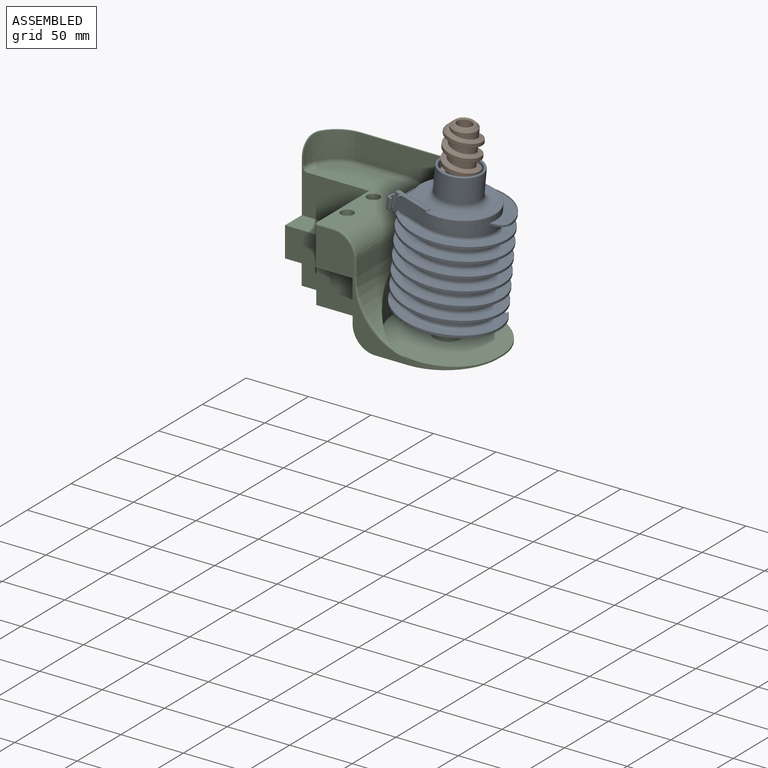
[diagram: assembled view]
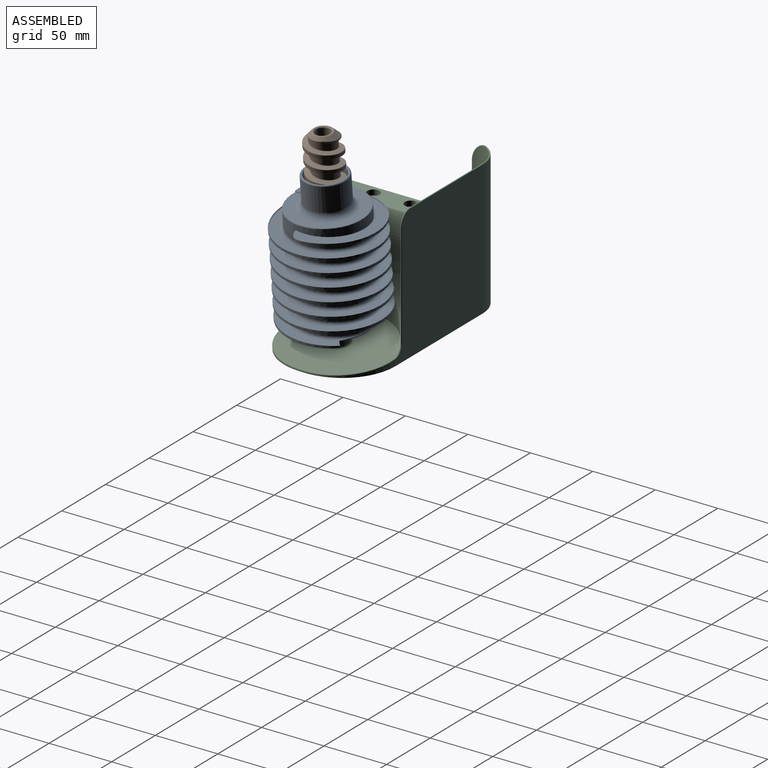
[diagram: assembled view, second angle]
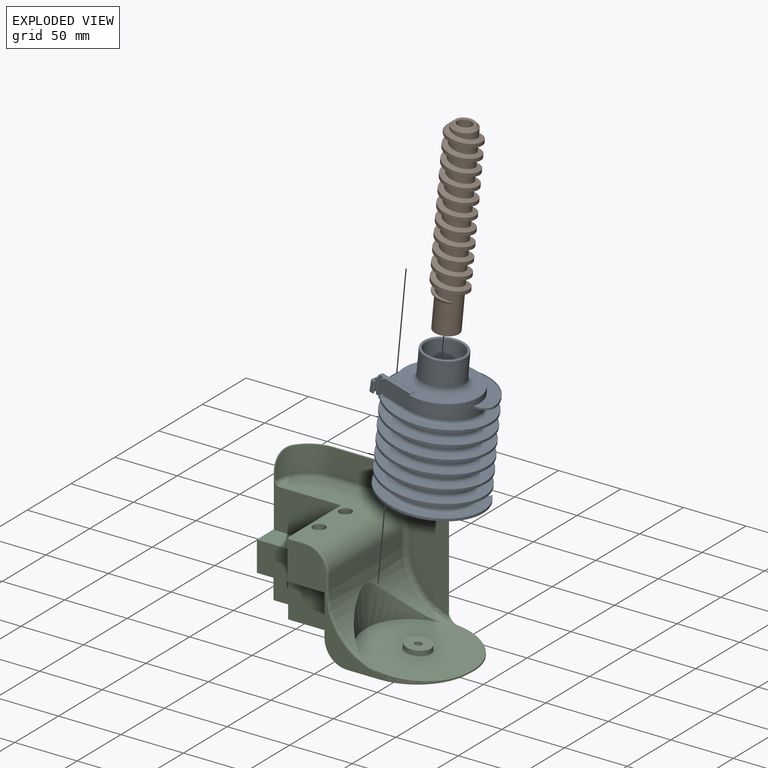
[diagram: exploded view]
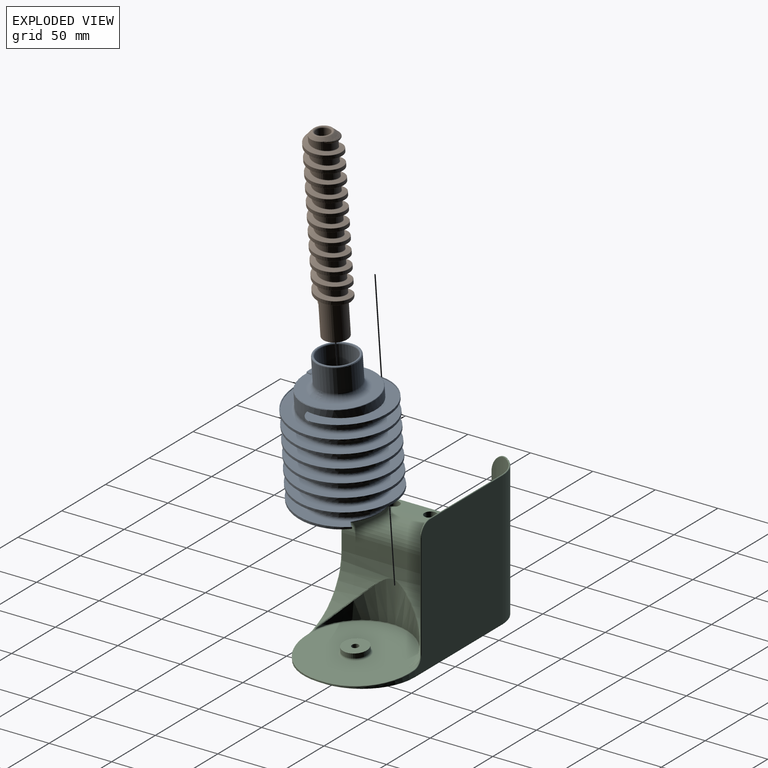
[diagram: exploded view, second angle]
ASSEMBLY  parts=3 mates=3
PART A: 163 faces, bbox 80.4x111.9x93.7 mm
  f0: cylinder r=15mm len=42mm, axis (0,1,0), area 3262.2mm2, adj f1,f32,f154,f155,f157,f159
  f1: cylinder r=15mm len=30mm, axis (0,1,0), area 478.9mm2, adj f0,f2,f154,f159
  f2: cylinder r=15mm len=30mm, axis (0,1,0), area 478.9mm2, adj f1,f3,f154,f159
  f3: cylinder r=15mm len=30mm, axis (0,1,0), area 478.9mm2, adj f2,f4,f154,f159
  f4: cylinder r=15mm len=30mm, axis (0,1,0), area 478.9mm2, adj f3,f5,f154,f159
  f5: cylinder r=15mm len=30mm, axis (0,1,0), area 478.9mm2, adj f4,f6,f154,f159
  f6: cylinder r=15mm len=30mm, axis (0,1,0), area 478.9mm2, adj f5,f7,f154,f159
  f7: cylinder r=15mm len=28.79mm, axis (0,1,0), area 110.8mm2, adj f6,f154,f158
  f8: bspline ~22.77x20.72mm, area 11.1mm2, adj f18,f22,f40,f146
  f9: bspline ~44.71x11.58mm, area 45.8mm2, adj f40,f140,f146,f147
  f10: plane 4x1mm, normal (-1,-0.06,0), area 3.6mm2, adj f13,f21,f78,f92,f95,f125
  f11: cylinder r=5mm len=8mm, axis (0,1,0), area 68.9mm2, adj f25,f34,f78,f102
  f12: bspline ~5.62x3.83mm, area 10.3mm2, adj f96,f100,f103,f104
  f13: plane 30.15x15.82mm, normal (0,0,-1), area 352.7mm2, adj f10,f16,f19,f25,f77,f80,f81,f92
  f14: cylinder r=39.5mm len=0.58mm, axis (0,-1,0), area 0.4mm2, adj f15,f16,f120
  f15: bspline ~27.93x18.29mm, area 0mm2, adj f14,f120
  f16: bspline ~28.38x12.2mm, area 0.7mm2, adj f13,f14,f19,f86,f120
  f17: bspline ~80.26x80.26mm, area 810.1mm2, adj f18,f19,f144,f150
  f18: cylinder r=39.5mm len=79mm, axis (0,-1,0), area 769.8mm2, adj f8,f17,f22,f40,f144,f150
  f19: cylinder r=40mm len=80mm, axis (0,-1,0), area 3560.1mm2, adj f13,f16,f17,f21,f35,f40,f86,f89
  f20: plane 59x59mm, normal (0,-1,0), area 1124.6mm2, adj f28,f29,f96,f104,f107
  f21: bspline ~80.26x68.51mm, area 71.4mm2, adj f10,f19,f33,f78,f95,f112
  f22: bspline ~79x79mm, area 10872.4mm2, adj f8,f18,f140,f142,f144,f146
  f23: cylinder r=28mm len=82.5mm, axis (0,1,0), area 3007.7mm2, adj f24,f40,f59,f61,f75,f76
  f24: cylinder r=2mm len=82.5mm, axis (0,1,0), area 240mm2, adj f23,f40,f59,f62,f75,f76
  f25: cylinder r=30mm len=83.5mm, axis (0,1,0), area 8202.7mm2, adj f11,f13,f34,f96,f102,f112,f140,f145
  f26: extruded ~19x5.37mm, area 102.4mm2, adj f27,f29,f31
  f27: cylinder r=17mm len=34mm, axis (0,1,0), area 1927mm2, adj f26,f28,f30
  f28: torus R=22mm, axis (0,-1,0), area 881.7mm2, adj f20,f27,f29
  f29: bspline ~9.25x5.4mm, area 46.9mm2, adj f20,f26,f28
  f30: torus R=16mm, axis (0,-1,0), area 155.9mm2, adj f27,f31,f32
  f31: bspline ~7.25x1.35mm, area 8.3mm2, adj f26,f30,f32
  f32: torus R=16mm, axis (0,-1,0), area 151.6mm2, adj f0,f30,f31
  f33: cylinder r=39.5mm len=77.83mm, axis (0,-1,0), area 71.4mm2, adj f21,f34,f78,f112
  f34: bspline ~79x79mm, area 1262.3mm2, adj f11,f25,f33,f78,f112
  f35: bspline ~80x80mm, area 12769mm2, adj f19,f112,f145,f149
  f36: bspline ~81.64x30mm, area 1998.1mm2, adj f39,f157,f159,f161,f162
  f37: cylinder r=11mm len=79.11mm, axis (0,-1,0), area 1096.3mm2, adj f39,f40,f151,f152,f161,f162
  f38: bspline ~78.07x30mm, area 1919.7mm2, adj f151,f152,f153,f154
  f39: plane 4.43x3.51mm, normal (0,0,-1), area 12.1mm2, adj f36,f37,f152,f157,f161
  f40: plane 63.32x59.92mm, normal (0,1,0), area 789.9mm2, adj f8,f9,f18,f19,f23,f24,f37,f42
  f41: plane 26.83x26.83mm, normal (0,1,0), area 363.4mm2, adj f42,f43,f44,f45,f46,f47,f48,f49
  f42: cylinder r=28mm len=82.5mm, axis (0,1,0), area 3094.3mm2, adj f40,f41,f43,f49
  f43: cylinder r=2mm len=82.5mm, axis (0,1,0), area 278.3mm2, adj f40,f41,f42,f44
  f44: plane 82.5x7.06mm, normal (0,0,1), area 582.8mm2, adj f40,f41,f43,f45
  f45: cylinder r=2mm len=82.5mm, axis (0,1,0), area 233mm2, adj f40,f41,f44,f46
  f46: cylinder r=17mm len=82.5mm, axis (0,1,0), area 1758.3mm2, adj f40,f41,f45,f47
  f47: cylinder r=2mm len=82.5mm, axis (0,1,0), area 233mm2, adj f40,f41,f46,f48
  f48: plane 82.5x7.06mm, normal (-1,0,0), area 582.8mm2, adj f40,f41,f47,f49
  f49: cylinder r=2mm len=82.5mm, axis (0,1,0), area 278.3mm2, adj f40,f41,f42,f48
  f50: plane 26.83x26.83mm, normal (0,1,0), area 363.4mm2, adj f51,f52,f53,f54,f55,f56,f57,f58
  f51: plane 82.5x7.06mm, normal (0,0,1), area 582.8mm2, adj f40,f50,f52,f58
  f52: cylinder r=2mm len=82.5mm, axis (0,1,0), area 278.3mm2, adj f40,f50,f51,f53
  f53: cylinder r=28mm len=82.5mm, axis (0,1,0), area 3094.3mm2, adj f40,f50,f52,f54
  f54: cylinder r=2mm len=82.5mm, axis (0,1,0), area 278.3mm2, adj f40,f50,f53,f55
  f55: plane 82.5x7.06mm, normal (1,0,0), area 582.8mm2, adj f40,f50,f54,f56
  f56: cylinder r=2mm len=82.5mm, axis (0,1,0), area 233mm2, adj f40,f50,f55,f57
  f57: cylinder r=17mm len=82.5mm, axis (0,1,0), area 1758.3mm2, adj f40,f50,f56,f58
  f58: cylinder r=2mm len=82.5mm, axis (0,1,0), area 233mm2, adj f40,f50,f51,f57
  f59: plane 26.83x25mm, normal (0,1,0), area 352.5mm2, adj f23,f24,f60,f61,f62,f63,f64,f65
  f60: plane 82.5x7.06mm, normal (0,0,-1), area 582.8mm2, adj f40,f59,f61,f65
  f61: cylinder r=2mm len=82.5mm, axis (0,1,0), area 278.3mm2, adj f23,f40,f59,f60
  f62: plane 82.5x7.06mm, normal (-1,0,0), area 582.8mm2, adj f24,f40,f59,f63
  f63: cylinder r=2mm len=82.5mm, axis (0,1,0), area 233mm2, adj f40,f59,f62,f64
  f64: cylinder r=17mm len=82.5mm, axis (0,1,0), area 1758.3mm2, adj f40,f59,f63,f65
  f65: cylinder r=2mm len=82.5mm, axis (0,1,0), area 233mm2, adj f40,f59,f60,f64
  f66: plane 26.83x26.83mm, normal (0,1,0), area 363.4mm2, adj f67,f68,f69,f70,f71,f72,f73,f74
  f67: plane 82.5x7.06mm, normal (1,0,0), area 582.8mm2, adj f40,f66,f68,f74
  f68: cylinder r=2mm len=82.5mm, axis (0,1,0), area 278.3mm2, adj f40,f66,f67,f69
  f69: cylinder r=28mm len=82.5mm, axis (0,1,0), area 3094.3mm2, adj f40,f66,f68,f70
  f70: cylinder r=2mm len=82.5mm, axis (0,1,0), area 278.3mm2, adj f40,f66,f69,f71
  f71: plane 82.5x7.06mm, normal (0,0,-1), area 582.8mm2, adj f40,f66,f70,f72
  f72: cylinder r=2mm len=82.5mm, axis (0,1,0), area 233mm2, adj f40,f66,f71,f73
  f73: cylinder r=17mm len=82.5mm, axis (0,1,0), area 1758.3mm2, adj f40,f66,f72,f74
  f74: cylinder r=2mm len=82.5mm, axis (0,1,0), area 233mm2, adj f40,f66,f67,f73
  f75: plane 12.03x9.38mm, normal (0,0,1), area 110.3mm2, adj f23,f24,f59,f76
  f76: plane 9.43x1.87mm, normal (-0.06,1,0), area 10.9mm2, adj f23,f24,f75
  f77: plane 2.32x2.28mm, normal (-0.06,1,0), area 2.6mm2, adj f13,f92,f93
  f78: plane 14.06x3.71mm, normal (0,0,1), area 32.6mm2, adj f10,f11,f21,f33,f34,f80,f100,f101
  f79: plane 3.43x0.04mm, normal (1,0,0), area 0.1mm2, adj f98,f99,f106,f107,f109
  f80: plane 4x1mm, normal (-1,-0.06,0), area 4mm2, adj f13,f78,f101,f130
  f81: plane 28.14x6.2mm, normal (0.06,-1,0), area 102.3mm2, adj f13,f82,f84,f85,f98,f99,f100,f101
  f82: plane 1.7x0.65mm, normal (-1,-0.06,0), area 1.1mm2, adj f81,f83,f85,f123
  f83: cylinder r=0.6mm len=1.7mm, axis (0,0,1), area 3.2mm2, adj f82,f84,f85,f122
  f84: plane 1.7x0.65mm, normal (1,0.06,0), area 1.1mm2, adj f81,f83,f85,f121
  f85: plane 1.29x1.24mm, normal (0,0,-1), area 1.3mm2, adj f81,f82,f83,f84
  f86: plane 1.7x1.15mm, normal (-1,-0.06,0), area 1.8mm2, adj f16,f19,f87,f88,f89,f91,f120
  f87: cylinder r=0.6mm len=1.7mm, axis (0,0,1), area 2.8mm2, adj f86,f88,f119,f141,f144
  f88: plane 1.97x1.96mm, normal (0,0,-1), area 2.7mm2, adj f86,f87,f89,f90,f91,f144
  f89: extruded ~1.95x1.43mm, area 1.4mm2, adj f19,f86,f88,f90,f91,f144
  f90: plane 1.81x1.35mm, normal (-0.06,1,0), area 1.2mm2, adj f88,f89,f91
  f91: cylinder r=0.1mm len=1.43mm, axis (0,0,1), area 0.2mm2, adj f86,f88,f89,f90
  f92: cylinder r=0.5mm len=3.32mm, axis (0,0,-1), area 2.2mm2, adj f10,f13,f77,f94
  f93: bspline ~3.04x3mm, area 2.7mm2, adj f13,f19,f77,f94
  f94: bspline ~1.7x1.24mm, area 0.8mm2, adj f19,f92,f93,f95
  f95: bspline ~0.62x0.36mm, area 0.2mm2, adj f10,f19,f21,f94
  f96: torus R=29.5mm, axis (0,-1,0), area 126.8mm2, adj f12,f20,f25,f97,f102,f103,f105,f106
  f97: cylinder r=0.5mm len=0.5mm, axis (-1,0,0), area 0.1mm2, adj f13,f96,f98,f105
  f98: cylinder r=0.5mm len=1.44mm, axis (0,1,0), area 0.5mm2, adj f13,f79,f81,f97,f99,f105
  f99: cylinder r=0.5mm len=3.86mm, axis (0,0,-1), area 2.6mm2, adj f79,f81,f98,f110,f111
  f100: cylinder r=0.5mm len=28.78mm, axis (-1,-0.06,0), area 12.8mm2, adj f12,f78,f81,f101,f103,f104,f111
  f101: cylinder r=0.5mm len=4mm, axis (0,0,-1), area 3mm2, adj f13,f78,f80,f81,f100
  f102: bspline ~8x7.56mm, area 61.3mm2, adj f11,f25,f78,f96,f103
  f103: bspline ~7.79x7.63mm, area 20.2mm2, adj f12,f96,f100,f102
  f104: bspline ~30.37x4.4mm, area 73.6mm2, adj f12,f20,f100,f108,f109,f110
  f105: bspline ~0.88x0.85mm, area 0.3mm2, adj f96,f97,f98,f106
  f106: bspline ~0.41x0.4mm, area 0mm2, adj f79,f96,f105,f107
  f107: cylinder r=0.4mm len=6mm, axis (0,0,-1), area 3mm2, adj f20,f79,f106,f108
  f108: bspline ~2.68x0.71mm, area 0.4mm2, adj f104,f107,f109
  f109: bspline ~0.4x0.38mm, area 0mm2, adj f79,f104,f108,f110
  f110: bspline ~0.68x0.63mm, area 0.1mm2, adj f99,f104,f109,f111
  f111: bspline ~0.29x0.29mm, area 0mm2, adj f99,f100,f110
  f112: cylinder r=10mm len=13.15mm, axis (0,1,0), area 28.8mm2, adj f19,f21,f25,f33,f34,f35,f145
  f113: plane 9.98x3mm, normal (1,0.06,0), area 30mm2, adj f114,f115,f118,f138
  f114: plane 3x1mm, normal (0.06,-1,0), area 3mm2, adj f113,f129,f132,f139
  f115: plane 3x1mm, normal (-0.06,1,0), area 3mm2, adj f113,f126,f135,f137
  f116: plane 8.11x2.47mm, normal (0,0,-1), area 16mm2, adj f124,f127,f132,f135
  f117: plane 7.99x7mm, normal (-1,-0.06,0), area 56mm2, adj f126,f127,f128,f129
  f118: plane 10.04x2.54mm, normal (0,0,1), area 19.6mm2, adj f113,f124,f131,f132,f134,f135
  f119: torus R=1.6mm, axis (0,0,1), area 3.8mm2, adj f13,f87,f120,f141
  f120: cylinder r=1mm len=1.16mm, axis (0.06,-1,0), area 1.3mm2, adj f13,f14,f15,f16,f86,f119
  f121: cylinder r=1mm len=1.04mm, axis (-0.06,1,0), area 1mm2, adj f13,f81,f84,f122
  f122: torus R=1.6mm, axis (0,0,1), area 4.8mm2, adj f13,f83,f121,f123
  f123: cylinder r=1mm len=1.04mm, axis (0.06,-1,0), area 1mm2, adj f13,f81,f82,f122
  f124: cylinder r=1mm len=8.05mm, axis (-0.06,1,0), area 12.6mm2, adj f116,f118,f131,f134
  f125: cylinder r=1mm len=5mm, axis (0,0,1), area 7.1mm2, adj f10,f78,f126,f137
  f126: cylinder r=1mm len=8mm, axis (0,0,1), area 11.8mm2, adj f115,f117,f125,f128,f136
  f127: cylinder r=1mm len=8.05mm, axis (-0.06,1,0), area 12.6mm2, adj f116,f117,f133,f136
  f128: cylinder r=1mm len=10.04mm, axis (0.06,-1,0), area 14.1mm2, adj f78,f117,f126,f129
  f129: cylinder r=1mm len=8mm, axis (0,0,-1), area 11.8mm2, adj f114,f117,f128,f130,f133
  f130: cylinder r=1mm len=5mm, axis (0,0,-1), area 7.1mm2, adj f78,f80,f129,f139
  f131: sphere r=1mm, area 1.6mm2, adj f118,f124,f132
  f132: cylinder r=1mm len=2.06mm, axis (1,0.06,0), area 3.1mm2, adj f114,f116,f118,f131,f133
  f133: sphere r=1mm, area 1.6mm2, adj f127,f129,f132
  f134: sphere r=1mm, area 1.6mm2, adj f118,f124,f135
  f135: cylinder r=1mm len=2.06mm, axis (-1,-0.06,0), area 3.1mm2, adj f115,f116,f118,f134,f136
  f136: sphere r=1mm, area 2.2mm2, adj f126,f127,f135
  f137: cylinder r=1mm len=2.06mm, axis (-1,-0.06,0), area 1.6mm2, adj f13,f115,f125,f138
  f138: cylinder r=1mm len=12.04mm, axis (-0.06,1,0), area 17.3mm2, adj f13,f113,f137,f139
  f139: cylinder r=1mm len=2.06mm, axis (-1,-0.06,0), area 1.6mm2, adj f13,f114,f130,f138
  f140: bspline ~75.12x64.03mm, area 3900.3mm2, adj f9,f22,f25,f142,f146
  f141: bspline ~1.62x1.25mm, area 0.6mm2, adj f87,f119,f142,f143
  f142: bspline ~31x3.52mm, area 69.8mm2, adj f13,f22,f140,f141,f143
  f143: bspline ~1.92x1.91mm, area 1.5mm2, adj f141,f142,f144
  f144: bspline ~6.99x1.86mm, area 2.7mm2, adj f17,f18,f19,f22,f87,f88,f89,f143
  f145: bspline ~80.32x64.03mm, area 4239.1mm2, adj f25,f35,f112,f148
  f146: bspline ~1x0.74mm, area 0.7mm2, adj f8,f9,f22,f40,f140
  f147: torus R=29.5mm, axis (0,1,0), area 73.5mm2, adj f9,f25,f40,f148
  f148: bspline ~42.09x13.86mm, area 21.6mm2, adj f40,f145,f147,f149
  f149: bspline ~9.91x6.33mm, area 0.2mm2, adj f19,f35,f40,f148
  f150: bspline ~26.8x23.52mm, area 1.2mm2, adj f17,f18,f19,f40
  f151: bspline ~77.46x22.75mm, area 323.2mm2, adj f37,f38,f40,f152,f153
  f152: bspline ~4.96x1.75mm, area 2.6mm2, adj f37,f38,f39,f151,f155
  f153: bspline ~9.59x2mm, area 1.1mm2, adj f38,f40,f151,f156
  f154: bspline ~76.22x30.01mm, area 420.3mm2, adj f0,f1,f2,f3,f4,f5,f6,f7
  f155: bspline ~1.27x1.07mm, area 0.8mm2, adj f0,f152,f154,f157
  f156: bspline ~8.5x4.46mm, area 4.3mm2, adj f40,f153,f154,f158
  f157: cylinder r=0.5mm len=4.99mm, axis (0,1,0), area 3.7mm2, adj f0,f36,f39,f155,f159
  f158: torus R=15.5mm, axis (0,1,0), area 34.7mm2, adj f7,f40,f156,f160
  f159: bspline ~81.1x30.01mm, area 447.9mm2, adj f0,f1,f2,f3,f4,f5,f6,f36
  f160: bspline ~9.28x4.03mm, area 8.7mm2, adj f40,f158,f159,f162
  f161: bspline ~79.39x22.75mm, area 332mm2, adj f36,f37,f39,f162
  f162: bspline ~8.21x7.59mm, area 10.5mm2, adj f36,f37,f40,f160,f161
PART B: 40 faces, bbox 28.4x154x30.1 mm
  f0: cylinder r=10mm len=20mm, axis (0,1,0), area 336.8mm2, adj f1,f2,f18,f28,f29,f32
  f1: cylinder r=10mm len=12.26mm, axis (0,1,0), area 31.8mm2, adj f0,f18,f32
  f2: cylinder r=10mm len=20mm, axis (0,1,0), area 343.4mm2, adj f0,f3,f29,f32
  f3: cylinder r=10mm len=20mm, axis (0,1,0), area 343.4mm2, adj f2,f4,f29,f32
  f4: cylinder r=10mm len=20mm, axis (0,1,0), area 343.4mm2, adj f3,f5,f29,f32
  f5: cylinder r=10mm len=20mm, axis (0,1,0), area 343.4mm2, adj f4,f6,f29,f32
  f6: cylinder r=10mm len=20mm, axis (0,1,0), area 343.4mm2, adj f5,f7,f29,f32
  f7: cylinder r=10mm len=20mm, axis (0,1,0), area 343.4mm2, adj f6,f8,f29,f32
  f8: cylinder r=10mm len=20mm, axis (0,1,0), area 343.4mm2, adj f7,f9,f29,f32
  f9: cylinder r=10mm len=20mm, axis (0,1,0), area 343.4mm2, adj f8,f10,f29,f32
  f10: cylinder r=10mm len=20mm, axis (0,1,0), area 343.4mm2, adj f9,f11,f29,f32
  f11: cylinder r=10mm len=20mm, axis (0,1,0), area 343.4mm2, adj f10,f12,f29,f32
  f12: cylinder r=10mm len=32.59mm, axis (0,1,0), area 1711.8mm2, adj f11,f16,f29,f30,f31
  f13: cylinder r=14mm len=118.31mm, axis (0,-1,0), area 2573.6mm2, adj f22,f23,f24,f25,f26,f27
  f14: bspline ~127.57x28mm, area 3122.9mm2, adj f17,f20,f26,f29
  f15: bspline ~127.57x28mm, area 3127.6mm2, adj f18,f21,f23,f32
  f16: plane 20x20mm, normal (0,-1,0), area 125.5mm2, adj f12,f39
  f17: cone r=10mm half-angle=42.1deg, axis (0,1,0), area 98.8mm2, adj f14,f21,f24,f26,f29,f30
  f18: cone r=15.63mm half-angle=45deg, axis (0,-1,0), area 267.4mm2, adj f0,f1,f15,f20,f23,f25,f28,f32
  f19: plane 13.91x13.91mm, normal (0,1,0), area 0.3mm2, adj f36,f37
  f20: bspline ~23.88x23.8mm, area 72.3mm2, adj f14,f18,f27,f28
  f21: bspline ~25.73x23.47mm, area 76.1mm2, adj f15,f17,f22,f31
  f22: bspline ~5.54x4.55mm, area 1.6mm2, adj f13,f21,f23,f24
  f23: bspline ~117.18x28.01mm, area 307.3mm2, adj f13,f15,f18,f22,f25
  f24: torus R=13.75mm, axis (0,-1,0), area 2.2mm2, adj f13,f17,f22,f26
  f25: torus R=13.75mm, axis (0,1,0), area 2.3mm2, adj f13,f18,f23,f27
  f26: bspline ~117.26x28.01mm, area 307.3mm2, adj f13,f14,f17,f24,f27
  f27: bspline ~5.24x4.13mm, area 1.5mm2, adj f13,f20,f25,f26
  f28: bspline ~6.85x4.06mm, area 1.7mm2, adj f0,f18,f20,f29
  f29: bspline ~125.19x20.38mm, area 238.3mm2, adj f0,f2,f3,f4,f5,f6,f7,f8
  f30: torus R=10.25mm, axis (0,-1,0), area 3.8mm2, adj f12,f17,f29,f31
  f31: bspline ~7.48x4.37mm, area 1.9mm2, adj f12,f21,f30,f32
  f32: bspline ~124.74x20.38mm, area 238.2mm2, adj f0,f1,f2,f3,f4,f5,f6,f7
  f33: cylinder r=5.75mm len=131.3mm, axis (0,1,0), area 4743.6mm2, adj f34,f36
  f34: torus R=5.25mm, axis (0,1,0), area 19.5mm2, adj f33,f38
  f35: cylinder r=2.75mm len=15.6mm, axis (0,1,0), area 269.6mm2, adj f38,f39
  f36: torus R=6.95mm, axis (0,-1,0), area 73.3mm2, adj f19,f33
  f37: torus R=6.96mm, axis (0,-1,0), area 43.8mm2, adj f18,f19
  f38: cone r=2.75mm half-angle=31.5deg, axis (0,1,0), area 135mm2, adj f34,f35
  f39: cone r=2.75mm half-angle=78.7deg, axis (0,-1,0), area 168.2mm2, adj f16,f35
PART C: 118 faces, bbox 175.3x94.9x115.6 mm
  f0: torus R=48.16mm, axis (0,-1,0), area 2.9mm2, adj f3,f11,f109,f114,f115
  f1: cylinder r=2.75mm len=16mm, axis (0,0,-1), area 276.5mm2, adj f16,f64,f69
  f2: cylinder r=2.75mm len=16mm, axis (0,0,-1), area 276.5mm2, adj f20,f63,f67
  f3: extruded ~4.02x0.19mm, area 0.4mm2, adj f0,f11,f65,f114
  f4: cylinder r=42.44mm len=45.85mm, axis (0,0,-1), area 162.8mm2, adj f5,f9,f15,f112
  f5: bspline ~46.21x42.44mm, area 52.8mm2, adj f4,f14,f39,f111
  f6: torus R=48.16mm, axis (0,-1,0), area 134.3mm2, adj f11,f12,f56,f106,f107
  f7: plane 82.5x13.09mm, normal (1,0,0), area 1079.8mm2, adj f12,f36,f38,f56
  f8: plane 82.5x63.02mm, normal (0,0,1), area 2011.4mm2, adj f10,f17,f38,f58,f59,f60,f61,f68
  f9: plane 170.76x89.12mm, normal (0,0,-1), area 9432.2mm2, adj f4,f11,f15,f26,f29,f31,f32,f65
  f10: plane 61x32mm, normal (-1,0,0), area 1212.8mm2, adj f8,f11,f16,f17,f19,f20,f21,f22
  f11: plane 81.5x74.19mm, normal (0,-1,0), area 1514.5mm2, adj f0,f3,f6,f9,f10,f25,f27,f56
  f12: cylinder r=46.66mm len=87mm, axis (0,-1,0), area 2179.5mm2, adj f6,f7,f14,f35,f37,f40,f104,f105
  f13: bspline ~79.47x35.03mm, area 1615mm2, adj f103,f105,f106
  f14: plane 88.14x82.52mm, normal (0.1,0,1), area 5147.9mm2, adj f5,f12,f39,f102,f103,f110,f117
  f15: plane 107.5x100.19mm, normal (0,1,0), area 9977.5mm2, adj f4,f9,f29,f39,f40,f41,f43,f45
  f16: plane 15x8mm, normal (0,0,-1), area 98.2mm2, adj f1,f10,f17,f24,f64
  f17: plane 68.5x36mm, normal (0,-1,0), area 1881.6mm2, adj f8,f10,f16,f18,f24,f53,f59
  f18: plane 69x19.51mm, normal (0,0,1), area 1311.1mm2, adj f17,f24,f26,f28,f29,f53
  f19: plane 15x11mm, normal (0,1,0), area 165mm2, adj f10,f20,f24,f25
  f20: plane 15x8mm, normal (0,0,-1), area 98.2mm2, adj f2,f10,f19,f24,f63
  f21: plane 15x10.5mm, normal (0,1,0), area 157.5mm2, adj f10,f22,f24,f63
  f22: plane 22x15mm, normal (0,0,-1), area 330mm2, adj f10,f21,f23,f24
  f23: plane 15x10.5mm, normal (0,-1,0), area 157.5mm2, adj f10,f22,f24,f64
  f24: plane 42x23.5mm, normal (-1,0,0), area 738.7mm2, adj f16,f17,f18,f19,f20,f21,f22,f23
  f25: plane 42x29.5mm, normal (0,0,-1), area 894mm2, adj f10,f11,f19,f24,f26,f27
  f26: plane 101.5x51mm, normal (0,-1,0), area 3653mm2, adj f9,f18,f25,f27,f28,f30,f32,f66
  f27: plane 42x33mm, normal (-1,0,0), area 1386mm2, adj f11,f25,f26,f66
  f28: plane 24x19mm, normal (-1,0,0), area 456mm2, adj f18,f26,f29,f30
  f29: cylinder r=28mm len=107.5mm, axis (0,0,1), area 4652.7mm2, adj f9,f15,f18,f28,f31,f49,f51,f53
  f30: plane 25x19mm, normal (0,0,-1), area 475mm2, adj f26,f28,f31,f32
  f31: plane 27x25mm, normal (0,-1,0), area 675mm2, adj f9,f29,f30,f32
  f32: plane 27x19mm, normal (-1,0,0), area 513mm2, adj f9,f26,f30,f31
  f33: cylinder r=27mm len=27mm, axis (0,0,-1), area 814.4mm2, adj f34,f52,f54,f55,f60
  f34: plane 96.58x92.86mm, normal (0,-1,0), area 3968.9mm2, adj f33,f35,f36,f44,f46,f48,f50,f61
  f35: torus R=42.66mm, axis (0,1,0), area 393mm2, adj f12,f34,f36,f42
  f36: cylinder r=4mm len=13.09mm, axis (0,0,-1), area 82.2mm2, adj f7,f34,f35,f62
  f37: cylinder r=7.9mm len=6.8mm, axis (0,-1,0), area 21mm2, adj f12,f41,f42
  f38: cylinder r=18mm len=82.5mm, axis (0,1,0), area 2332.6mm2, adj f7,f8,f57,f62
  f39: cylinder r=0.5mm len=0.5mm, axis (1,0,-0.1), area 0mm2, adj f5,f14,f15,f40
  f40: torus R=47.16mm, axis (0,-1,0), area 0mm2, adj f12,f15,f39,f41
  f41: torus R=8.4mm, axis (0,-1,0), area 9.4mm2, adj f15,f37,f40,f43,f44
  f42: bspline ~7.36x5.82mm, area 2.8mm2, adj f35,f37,f44
  f43: cylinder r=0.5mm len=84.67mm, axis (0,0,1), area 66.5mm2, adj f15,f41,f45,f46
  f44: torus R=8.4mm, axis (0,1,0), area 1.9mm2, adj f34,f41,f42,f46
  f45: torus R=9.5mm, axis (0,-1,0), area 12.1mm2, adj f15,f43,f47,f48
  f46: cylinder r=0.5mm len=84.67mm, axis (0,0,-1), area 66.5mm2, adj f34,f43,f44,f48
  f47: cylinder r=0.5mm len=83mm, axis (-1,0,0), area 65.2mm2, adj f15,f45,f49,f50
  f48: torus R=9.5mm, axis (0,1,0), area 12.1mm2, adj f34,f45,f46,f50
  f49: torus R=27.5mm, axis (0,0,1), area 21.7mm2, adj f29,f47,f51,f52
  f50: cylinder r=0.5mm len=83mm, axis (-1,0,0), area 65.2mm2, adj f34,f47,f48,f52
  f51: bspline ~17.37x16.69mm, area 20.1mm2, adj f29,f49,f53,f54
  f52: torus R=27.5mm, axis (0,0,1), area 21.2mm2, adj f33,f49,f50,f54
  f53: cylinder r=0.5mm len=42mm, axis (0,0,1), area 33.4mm2, adj f17,f18,f29,f51,f55
  f54: bspline ~17.09x16.69mm, area 17.8mm2, adj f33,f51,f52,f55
  f55: cylinder r=0.5mm len=6mm, axis (0,0,-1), area 4.7mm2, adj f33,f53,f54,f59
  f56: cylinder r=1.5mm len=13.09mm, axis (0,0,-1), area 30.8mm2, adj f6,f7,f11,f57
  f57: torus R=16.5mm, axis (0,-1,0), area 64.6mm2, adj f11,f38,f56,f58
  f58: cylinder r=1.5mm len=14mm, axis (-1,0,0), area 33mm2, adj f8,f10,f11,f57
  f59: torus R=4.5mm, axis (0,0,-1), area 3.2mm2, adj f8,f17,f55,f60
  f60: torus R=23mm, axis (0,0,-1), area 249.2mm2, adj f8,f33,f59,f61
  f61: cylinder r=4mm len=40mm, axis (-1,0,0), area 251.3mm2, adj f8,f34,f60,f62
  f62: torus R=22mm, axis (0,1,0), area 192mm2, adj f34,f36,f38,f61
  f63: cylinder r=2mm len=15mm, axis (-1,0,0), area 45.1mm2, adj f2,f10,f20,f21,f24
  f64: cylinder r=2mm len=15mm, axis (-1,0,0), area 45.1mm2, adj f1,f10,f16,f23,f24
  f65: cylinder r=42mm len=44.57mm, axis (0.1,0,1), area 157.1mm2, adj f3,f9,f102,f113,f114
  f66: cylinder r=18mm len=42mm, axis (0,1,0), area 1187.5mm2, adj f9,f11,f26,f27
  f67: plane 8x8mm, normal (0,0,1), area 26.5mm2, adj f2,f72
  f68: cylinder r=5mm len=10mm, axis (0,0,1), area 125.7mm2, adj f8,f72
  f69: plane 8x8mm, normal (0,0,1), area 26.5mm2, adj f1,f71
  f70: cylinder r=5mm len=10mm, axis (0,0,1), area 125.7mm2, adj f8,f71
  f71: torus R=4mm, axis (0,0,1), area 45.8mm2, adj f69,f70
  f72: torus R=4mm, axis (0,0,1), area 45.8mm2, adj f67,f68
  f73: cylinder r=2.8mm len=6.1mm, axis (0.1,0,1), area 96.8mm2, adj f75,f83
  f74: cylinder r=10mm len=20.24mm, axis (-0.1,0,-1), area 219.9mm2, adj f75,f110
  f75: plane 20x19.91mm, normal (0.1,0,1), area 289.5mm2, adj f73,f74
  f76: plane 4.41x4mm, normal (0.86,0.5,-0.08), area 19.9mm2, adj f9,f84,f89,f90
  f77: plane 5x4.14mm, normal (0,1,0), area 18.2mm2, adj f9,f90,f95,f96
  f78: plane 4x3.66mm, normal (-0.86,0.5,0.08), area 16.5mm2, adj f9,f96,f97,f101
  f79: plane 4x3.66mm, normal (-0.86,-0.5,0.08), area 16.5mm2, adj f9,f91,f97,f98
  f80: plane 5x4.14mm, normal (0,-1,0), area 18.2mm2, adj f9,f85,f91,f92
  f81: plane 4.41x4mm, normal (0.86,-0.5,-0.08), area 19.9mm2, adj f9,f84,f85,f86
  f82: plane 9.2x8mm, normal (-0.1,0,-1), area 21.2mm2, adj f83,f86,f89,f92,f95,f98,f101
  f83: torus R=3.3mm, axis (0.1,0,1), area 14.7mm2, adj f73,f82
  f84: cylinder r=0.5mm len=4.41mm, axis (-0.1,0,-1), area 2.3mm2, adj f9,f76,f81,f87
  f85: cylinder r=0.5mm len=4.23mm, axis (-0.1,0,-1), area 2.2mm2, adj f9,f80,f81,f88
  f86: cylinder r=0.5mm len=4.25mm, axis (0.5,0.87,-0.05), area 3.6mm2, adj f81,f82,f87,f88
  f87: sphere r=0.5mm, area 0.2mm2, adj f84,f86,f89
  f88: sphere r=0.5mm, area 0.4mm2, adj f85,f86,f92
  f89: cylinder r=0.5mm len=4.25mm, axis (-0.5,0.87,0.05), area 3.6mm2, adj f76,f82,f87,f93
  f90: cylinder r=0.5mm len=4.23mm, axis (-0.1,0,-1), area 2.2mm2, adj f9,f76,f77,f93
  f91: cylinder r=0.5mm len=3.74mm, axis (-0.1,0,-1), area 1.9mm2, adj f9,f79,f80,f94
  f92: cylinder r=0.5mm len=4.65mm, axis (1,0,-0.1), area 3.6mm2, adj f80,f82,f88,f94
  f93: sphere r=0.5mm, area 0.3mm2, adj f89,f90,f95
  f94: sphere r=0.5mm, area 0.2mm2, adj f91,f92,f98
  f95: cylinder r=0.5mm len=4.65mm, axis (-1,0,0.1), area 3.6mm2, adj f77,f82,f93,f99
  f96: cylinder r=0.5mm len=3.74mm, axis (-0.1,0,-1), area 1.9mm2, adj f9,f77,f78,f99
  f97: cylinder r=0.5mm len=3.45mm, axis (-0.1,0,-1), area 1.8mm2, adj f9,f78,f79,f100
  f98: cylinder r=0.5mm len=4.25mm, axis (0.5,-0.87,-0.05), area 3.6mm2, adj f79,f82,f94,f100
  f99: sphere r=0.5mm, area 0.3mm2, adj f95,f96,f101
  f100: sphere r=0.5mm, area 0.3mm2, adj f97,f98,f101
  f101: cylinder r=0.5mm len=4.25mm, axis (-0.5,-0.87,0.05), area 3.6mm2, adj f78,f82,f99,f100
  f102: torus R=41.5mm, axis (-0.1,0,-1), area 55.7mm2, adj f14,f65,f111,f112,f115,f116
  f103: bspline ~83.97x43.79mm, area 170.8mm2, adj f13,f14,f104,f107,f108,f109
  f104: bspline ~14.14x3.63mm, area 6.3mm2, adj f12,f103,f105
  f105: bspline ~83.29x36.4mm, area 103.2mm2, adj f12,f13,f104,f106
  f106: bspline ~1.83x1.72mm, area 1mm2, adj f6,f13,f105,f107
  f107: bspline ~3.55x2.74mm, area 5.7mm2, adj f6,f103,f106,f108
  f108: bspline ~4.61x3.93mm, area 6.1mm2, adj f11,f103,f107,f109
  f109: bspline ~5.63x1.85mm, area 5.2mm2, adj f0,f103,f108,f116,f117
  f110: torus R=11.5mm, axis (-0.1,0,-1), area 156.1mm2, adj f14,f74
  f111: bspline ~1.2x0.61mm, area 0.4mm2, adj f5,f102,f112
  f112: bspline ~2.35x2.29mm, area 1.3mm2, adj f4,f9,f102,f111,f113
  f113: bspline ~13.75x12.09mm, area 0.7mm2, adj f9,f65,f112
  f114: bspline ~3.09x1.51mm, area 1mm2, adj f0,f3,f65,f115
  f115: bspline ~4.45x1.46mm, area 1.7mm2, adj f0,f102,f114,f116
  f116: bspline ~1.73x0.92mm, area 0.7mm2, adj f102,f109,f115,f117
  f117: bspline ~1.37x0.49mm, area 0.1mm2, adj f14,f109,f116
PLACE A rot(axis=(-0.99,0.13,-0.04),91deg) t=(242.52,18.87,-99.95)mm
PLACE B rot(axis=(1,0.05,-0.05),90.1deg) t=(257,18.87,50.58)mm
PLACE C t=(244.92,18.87,-111.11)mm fixed
MATE cylindrical A.f27 <-> B.f0  axis (-0.1,0,-1) through (252.96,18.87,8.55)mm
MATE slider C.f65 <-> B.f0  axis (0.1,0,1) through (242.26,18.87,-102.71)mm
MATE planar C.f65 <-> B.f0  axis (0.1,0,1) through (242.26,18.87,-102.71)mm
